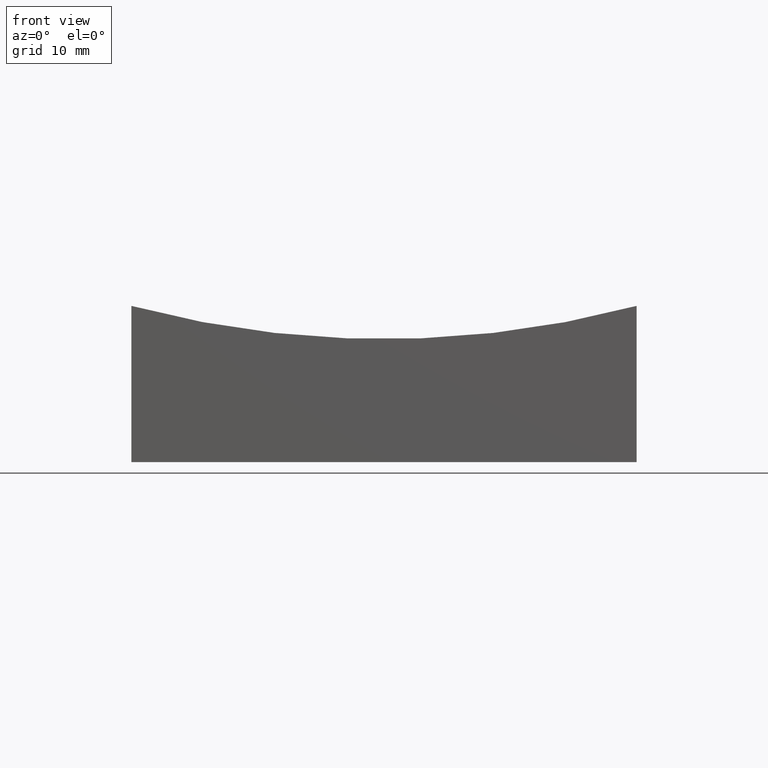
[diagram: clean part render]
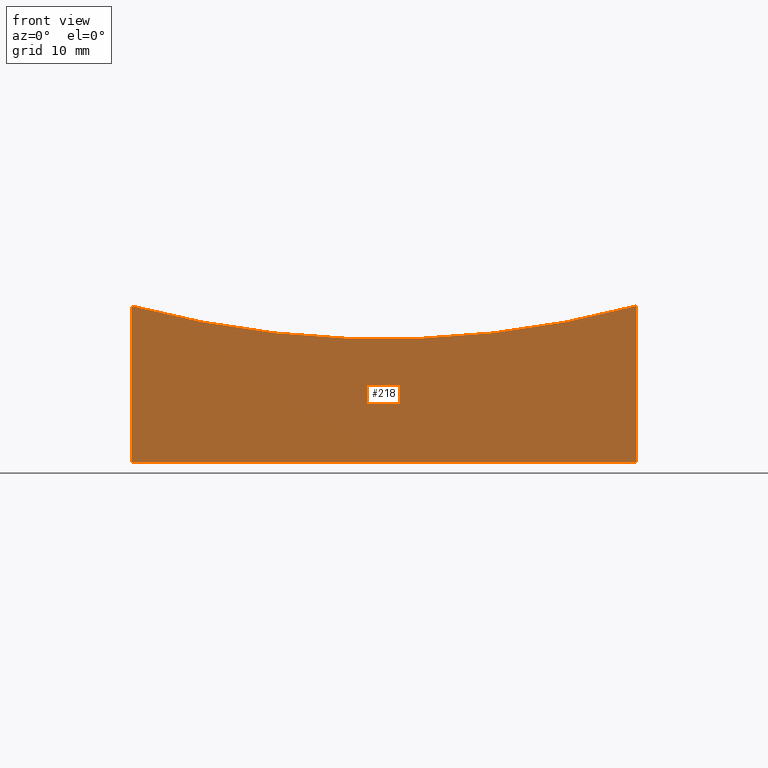
[diagram: same view with one face highlighted and labeled with its STEP entity id]
A machine part, front view. The second image highlights one B-rep face of the part: STEP entity #218.
In plain terms, the highlighted planar face has unit normal (0, 1, 0).
Its self-contained STEP definition (entity closure, byte-faithful):
#3 = EDGE_CURVE ( 'NONE', #17, #194, #18, .T. ) ;
#17 = VERTEX_POINT ( 'NONE', #38 ) ;
#18 = LINE ( 'NONE', #153, #162 ) ;
#21 = ORIENTED_EDGE ( 'NONE', *, *, #46, .T. ) ;
#24 = CARTESIAN_POINT ( 'NONE',  ( -25.00000000000000000, -25.00000000000000711, 50.00000000000000000 ) ) ;
#27 = CARTESIAN_POINT ( 'NONE',  ( -25.00000000000000000, -25.00000000000000711, 50.00000000000000000 ) ) ;
#36 = EDGE_CURVE ( 'NONE', #176, #37, #63, .T. ) ;
#37 = VERTEX_POINT ( 'NONE', #160 ) ;
#38 = CARTESIAN_POINT ( 'NONE',  ( -25.00000000000000000, -25.00000000000000711, 0.0000000000000000000 ) ) ;
#41 = CARTESIAN_POINT ( 'NONE',  ( 25.00000000000000000, -25.00000000000000711, 50.00000000000000000 ) ) ;
#45 = DIRECTION ( 'NONE',  ( -0.0000000000000000000, -0.0000000000000000000, -1.000000000000000000 ) ) ;
#46 = EDGE_CURVE ( 'NONE', #37, #17, #183, .T. ) ;
#48 = DIRECTION ( 'NONE',  ( 0.0000000000000000000, -0.0000000000000000000, 1.000000000000000000 ) ) ;
#53 = VECTOR ( 'NONE', #45, 1000.000000000000000 ) ;
#58 = VECTOR ( 'NONE', #108, 1000.000000000000000 ) ;
#63 = CIRCLE ( 'NONE', #211, 96.82458365518536425 ) ;
#67 = DIRECTION ( 'NONE',  ( 0.0000000000000000000, 0.0000000000000000000, 1.000000000000000000 ) ) ;
#76 = EDGE_LOOP ( 'NONE', ( #100, #191, #21, #152 ) ) ;
#85 = FACE_OUTER_BOUND ( 'NONE', #76, .T. ) ;
#100 = ORIENTED_EDGE ( 'NONE', *, *, #171, .F. ) ;
#108 = DIRECTION ( 'NONE',  ( -0.0000000000000000000, -0.0000000000000000000, -1.000000000000000000 ) ) ;
#114 = AXIS2_PLACEMENT_3D ( 'NONE', #27, #205, #48 ) ;
#152 = ORIENTED_EDGE ( 'NONE', *, *, #3, .T. ) ;
#153 = CARTESIAN_POINT ( 'NONE',  ( -25.00000000000000000, -25.00000000000000711, 0.0000000000000000000 ) ) ;
#160 = CARTESIAN_POINT ( 'NONE',  ( -25.00000000000000000, -25.00000000000000711, 15.45856533065151339 ) ) ;
#162 = VECTOR ( 'NONE', #252, 1000.000000000000000 ) ;
#171 = EDGE_CURVE ( 'NONE', #176, #194, #220, .T. ) ;
#176 = VERTEX_POINT ( 'NONE', #202 ) ;
#180 = CARTESIAN_POINT ( 'NONE',  ( 25.00000000000000000, -25.00000000000000711, 0.0000000000000000000 ) ) ;
#183 = LINE ( 'NONE', #24, #58 ) ;
#191 = ORIENTED_EDGE ( 'NONE', *, *, #36, .T. ) ;
#194 = VERTEX_POINT ( 'NONE', #180 ) ;
#197 = CARTESIAN_POINT ( 'NONE',  ( 1.334865011070615797E-14, -25.00000000000000711, 108.9999999999999858 ) ) ;
#202 = CARTESIAN_POINT ( 'NONE',  ( 25.00000000000000000, -25.00000000000000711, 15.45856533065151339 ) ) ;
#203 = PLANE ( 'NONE',  #114 ) ;
#205 = DIRECTION ( 'NONE',  ( 0.0000000000000000000, 1.000000000000000000, 0.0000000000000000000 ) ) ;
#211 = AXIS2_PLACEMENT_3D ( 'NONE', #197, #230, #67 ) ;
#218 = ADVANCED_FACE ( 'NONE', ( #85 ), #203, .F. ) ;
#220 = LINE ( 'NONE', #41, #53 ) ;
#230 = DIRECTION ( 'NONE',  ( 0.0000000000000000000, 1.000000000000000000, 0.0000000000000000000 ) ) ;
#252 = DIRECTION ( 'NONE',  ( 1.000000000000000000, 0.0000000000000000000, 0.0000000000000000000 ) ) ;